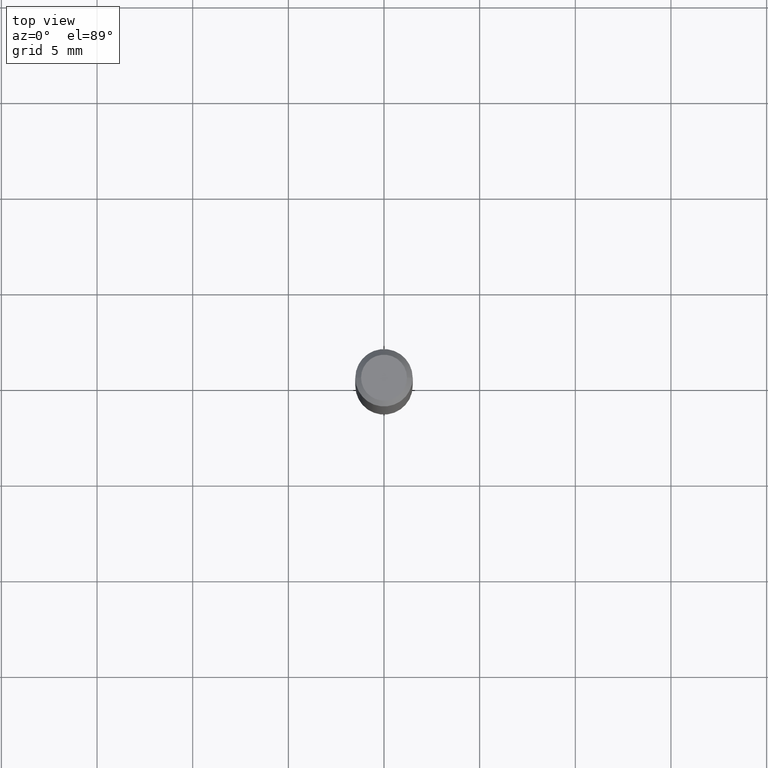
[diagram: clean part render]
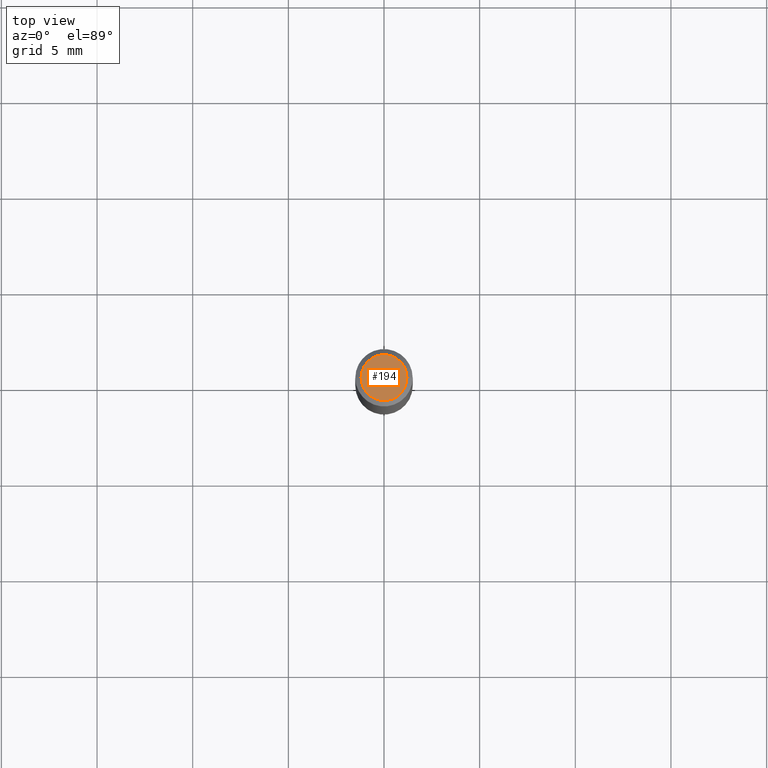
[diagram: same view with one face highlighted and labeled with its STEP entity id]
A machine part, top view. The second image highlights one B-rep face of the part: STEP entity #194.
In plain terms, the highlighted planar face has unit normal (0, -0, -1).
Its self-contained STEP definition (entity closure, byte-faithful):
#37 = DIRECTION ( 'NONE',  ( -2.445468806185136597E-29, 3.491481338843145583E-15, 1.000000000000000000 ) ) ;
#74 = CARTESIAN_POINT ( 'NONE',  ( 0.04724000000000000421, -3.852183633974369345E-16, -3.380025165621689721E-19 ) ) ;
#101 = EDGE_LOOP ( 'NONE', ( #133, #282 ) ) ;
#109 = FACE_OUTER_BOUND ( 'NONE', #101, .T. ) ;
#121 = CARTESIAN_POINT ( 'NONE',  ( -0.04724000000000000421, 3.504923541997677355E-16, -3.380025165670481712E-19 ) ) ;
#133 = ORIENTED_EDGE ( 'NONE', *, *, #451, .T. ) ;
#165 = CIRCLE ( 'NONE', #323, 0.04724000000000000421 ) ;
#184 = DIRECTION ( 'NONE',  ( 2.438088387897960049E-29, -3.491481338843145188E-15, -1.000000000000000000 ) ) ;
#185 = AXIS2_PLACEMENT_3D ( 'NONE', #368, #184, #332 ) ;
#189 = DIRECTION ( 'NONE',  ( 1.000000000000000000, -6.982962677686266711E-15, 4.876185090822587894E-29 ) ) ;
#194 = ADVANCED_FACE ( 'NONE', ( #109 ), #222, .F. ) ;
#222 = PLANE ( 'NONE',  #185 ) ;
#227 = CARTESIAN_POINT ( 'NONE',  ( 8.265746106709734507E-48, -1.180129479067563789E-33, -3.380025165646692144E-19 ) ) ;
#245 = VERTEX_POINT ( 'NONE', #74 ) ;
#262 = AXIS2_PLACEMENT_3D ( 'NONE', #227, #37, #189 ) ;
#282 = ORIENTED_EDGE ( 'NONE', *, *, #392, .T. ) ;
#323 = AXIS2_PLACEMENT_3D ( 'NONE', #386, #350, #363 ) ;
#332 = DIRECTION ( 'NONE',  ( -1.000000000000000000, 6.982962677686265922E-15, -4.876176775795935793E-29 ) ) ;
#339 = VERTEX_POINT ( 'NONE', #121 ) ;
#350 = DIRECTION ( 'NONE',  ( -2.445468806185136597E-29, 3.491481338843145583E-15, 1.000000000000000000 ) ) ;
#363 = DIRECTION ( 'NONE',  ( 1.000000000000000000, -6.982962677686266711E-15, 4.876185090822587894E-29 ) ) ;
#368 = CARTESIAN_POINT ( 'NONE',  ( 4.132873053354867254E-48, -5.900647395337818946E-34, -1.690012582823346072E-19 ) ) ;
#381 = CIRCLE ( 'NONE', #262, 0.04724000000000000421 ) ;
#386 = CARTESIAN_POINT ( 'NONE',  ( 8.265746106709734507E-48, -1.180129479067563789E-33, -3.380025165646692144E-19 ) ) ;
#392 = EDGE_CURVE ( 'NONE', #245, #339, #381, .T. ) ;
#451 = EDGE_CURVE ( 'NONE', #339, #245, #165, .T. ) ;